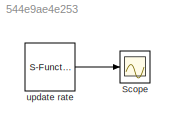
MODEL slx_544e9ae4e253
KIND model
CONFIG AbsTol = auto
CONFIG EnableMultiTasking = on
CONFIG FixedStep = .001
CONFIG MaxStep = auto
CONFIG MinStep = auto
CONFIG RelTol = 1e-3
CONFIG SampleTimeConstraint = Unconstrained
CONFIG Solver = FixedStepAuto
CONFIG SolverName = FixedStepAuto
CONFIG StartTime = 0.0
CONFIG StopTime = inf
BLOCK [Scope] Scope
  Floating = off
  NumInputPorts = 1
  Ports = [1]
  ScopeSpecificationString = Simulink.scopes.TimeScopeBlockCfg('CurrentConfiguration', extmgr.ConfigurationSet(extmgr.Configuration('Core','General UI',true),extmgr.Configuration('Core','Source UI',true),extmgr.Configuration('Sources','WiredSimulink',true),extmgr.Configuration('Visuals','Time Domain',true,'SerializedDisplays',{struct('MinYLimReal','0.00095','MaxYLimReal','0.00105','YLabelReal','','MinYLimMag','0.00095','MaxYL...<+1323ch>
BLOCK [S-Function] update rate
  EnableBusSupport = off
  FunctionName = updateRate
  Ports = [0, 1]
  SFcnIsStateOwnerBlock = off
  SFunctionDeploymentMode = off
LINE update rate:1 -> Scope:1
